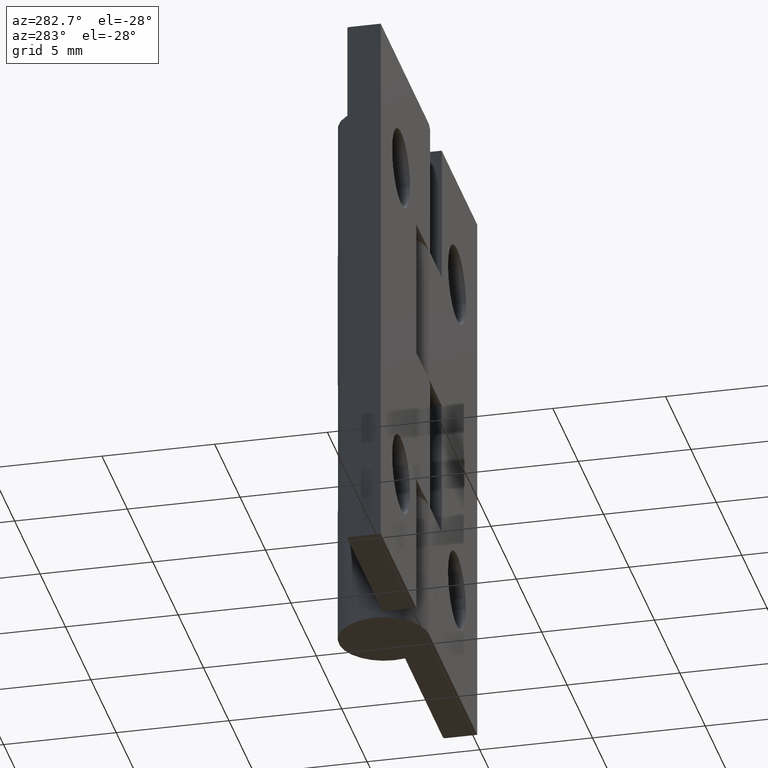
[diagram: clean part render]
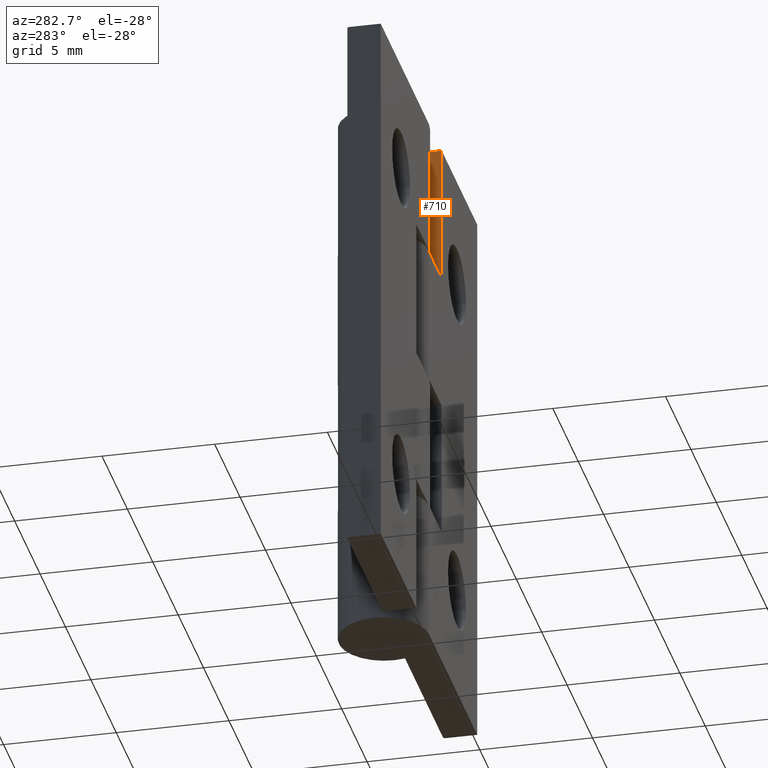
[diagram: same view with one face highlighted and labeled with its STEP entity id]
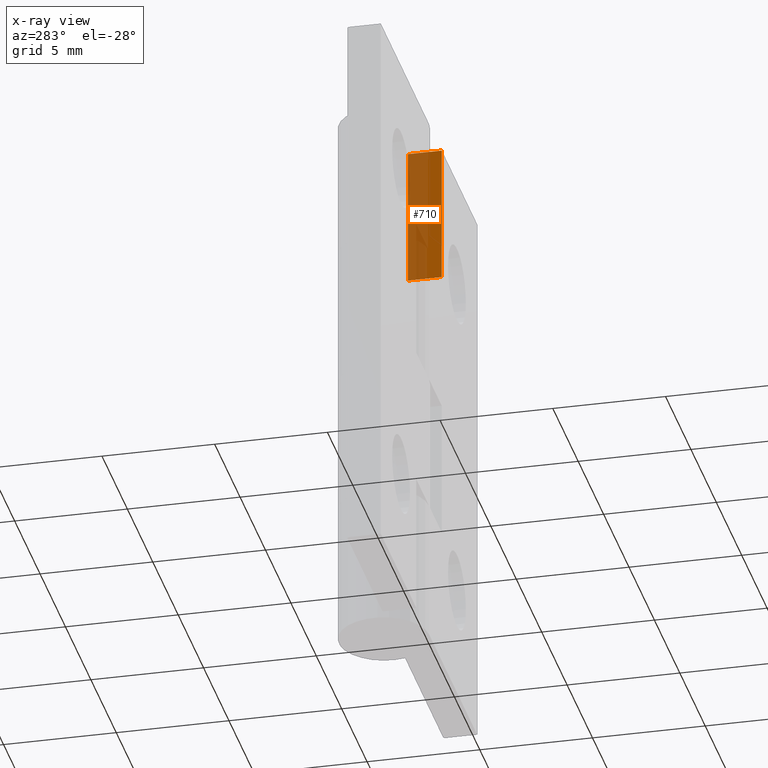
[diagram: x-ray of the same camera — body ghosted, the highlighted face saturated]
A machine part, auxiliary view. The second image highlights one B-rep face of the part: STEP entity #710.
The next image is the same camera in x-ray: the body ghosted, the highlighted face saturated — about 58% of this face is hidden behind the body in this view.
In plain terms, the highlighted planar face has unit normal (1, 0, -0).
Its self-contained STEP definition (entity closure, byte-faithful):
#139=FACE_OUTER_BOUND('',#194,.T.);
#194=EDGE_LOOP('',(#589,#590,#591,#592));
#261=LINE('',#1147,#315);
#263=LINE('',#1151,#317);
#264=LINE('',#1153,#318);
#265=LINE('',#1154,#319);
#315=VECTOR('',#931,1.5);
#317=VECTOR('',#935,6.2);
#318=VECTOR('',#936,1.5);
#319=VECTOR('',#937,6.2);
#374=VERTEX_POINT('',#1144);
#375=VERTEX_POINT('',#1146);
#376=VERTEX_POINT('',#1150);
#377=VERTEX_POINT('',#1152);
#453=EDGE_CURVE('',#374,#375,#261,.T.);
#455=EDGE_CURVE('',#376,#374,#263,.T.);
#456=EDGE_CURVE('',#377,#376,#264,.T.);
#457=EDGE_CURVE('',#375,#377,#265,.T.);
#589=ORIENTED_EDGE('',*,*,#455,.F.);
#590=ORIENTED_EDGE('',*,*,#456,.F.);
#591=ORIENTED_EDGE('',*,*,#457,.F.);
#592=ORIENTED_EDGE('',*,*,#453,.F.);
#678=PLANE('',#774);
#710=ADVANCED_FACE('',(#139),#678,.F.);
#774=AXIS2_PLACEMENT_3D('',#1149,#933,#934);
#931=DIRECTION('',(0.,-1.,0.));
#933=DIRECTION('center_axis',(1.,0.,-2.68602344667377E-16));
#934=DIRECTION('ref_axis',(-2.66453525910038E-16,0.,-1.));
#935=DIRECTION('',(2.68602344667377E-16,3.13903692124235E-32,1.));
#936=DIRECTION('',(0.,1.,0.));
#937=DIRECTION('',(-2.68602344667377E-16,0.,-1.));
#1144=CARTESIAN_POINT('',(2.5,1.5,12.5));
#1146=CARTESIAN_POINT('',(2.5,0.,12.5));
#1147=CARTESIAN_POINT('',(2.5,0.375,12.5));
#1149=CARTESIAN_POINT('Origin',(2.5,0.,12.5));
#1150=CARTESIAN_POINT('',(2.5,1.5,6.3));
#1151=CARTESIAN_POINT('',(2.5,1.5,6.25));
#1152=CARTESIAN_POINT('',(2.5,0.,6.3));
#1153=CARTESIAN_POINT('',(2.5,0.,6.3));
#1154=CARTESIAN_POINT('',(2.5,0.,6.25));